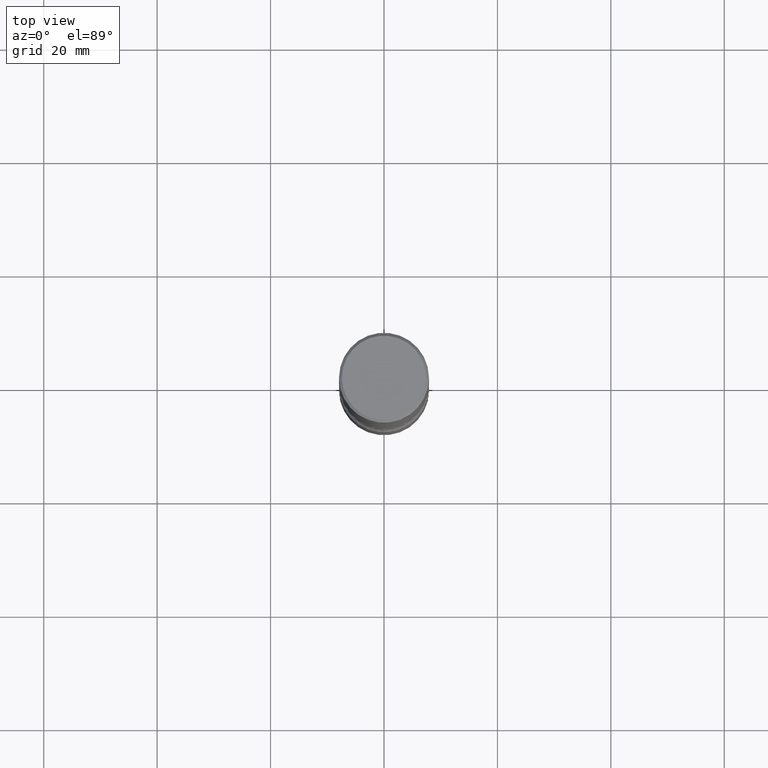
[diagram: clean part render]
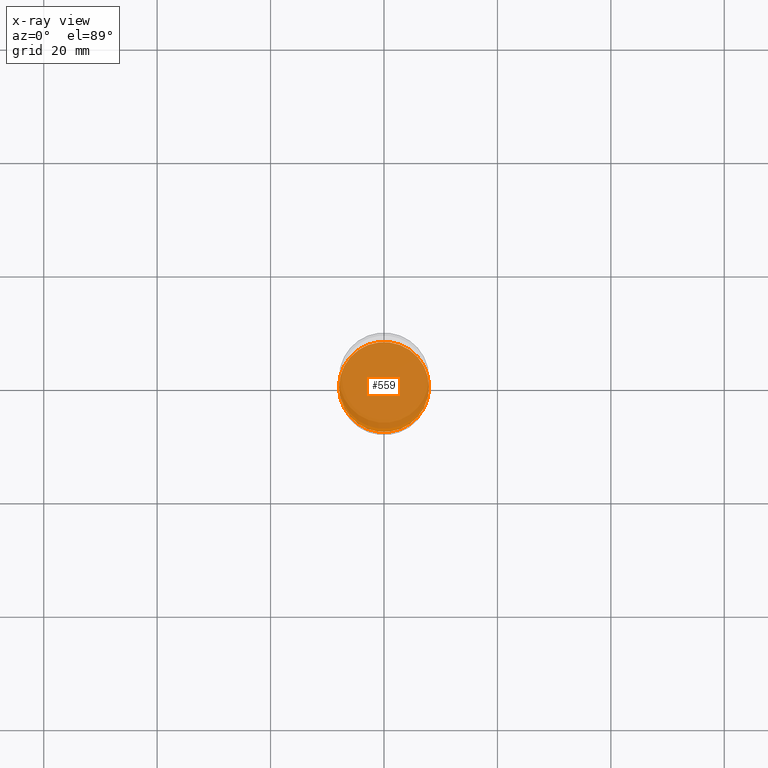
[diagram: x-ray — body ghosted, one internal face saturated and labeled with its STEP entity id]
A machine part, top view, then the same camera in x-ray: the body is ghosted and one INTERNAL B-rep face — a face not visible from any outside direction — is saturated and labeled: STEP entity #559.
In plain terms, the highlighted planar face has unit normal (0, -0, -1).
Its self-contained STEP definition (entity closure, byte-faithful):
#24 = EDGE_CURVE ( 'NONE', #520, #395, #144, .T. ) ;
#44 = CARTESIAN_POINT ( 'NONE',  ( 9.170508023194261117E-29, -1.309305502066179584E-14, -3.749999999999999556 ) ) ;
#119 = AXIS2_PLACEMENT_3D ( 'NONE', #496, #359, #318 ) ;
#128 = DIRECTION ( 'NONE',  ( -2.445468806185136597E-29, 3.491481338843145583E-15, 1.000000000000000000 ) ) ;
#144 = CIRCLE ( 'NONE', #119, 0.3125000000000001665 ) ;
#169 = EDGE_CURVE ( 'NONE', #395, #520, #472, .T. ) ;
#190 = AXIS2_PLACEMENT_3D ( 'NONE', #44, #128, #419 ) ;
#213 = ORIENTED_EDGE ( 'NONE', *, *, #169, .T. ) ;
#238 = FACE_OUTER_BOUND ( 'NONE', #363, .T. ) ;
#239 = CARTESIAN_POINT ( 'NONE',  ( 0.3125000000000001665, -1.527523085743875418E-14, -3.749999999999999556 ) ) ;
#286 = PLANE ( 'NONE',  #378 ) ;
#288 = DIRECTION ( 'NONE',  ( -1.000000000000000000, 6.982962677686265922E-15, -4.876176775795935793E-29 ) ) ;
#294 = ORIENTED_EDGE ( 'NONE', *, *, #24, .T. ) ;
#318 = DIRECTION ( 'NONE',  ( 1.000000000000000000, -6.982962677686265133E-15, 0.000000000000000000 ) ) ;
#359 = DIRECTION ( 'NONE',  ( -2.445468806185136597E-29, 3.491481338843145583E-15, 1.000000000000000000 ) ) ;
#363 = EDGE_LOOP ( 'NONE', ( #294, #213 ) ) ;
#378 = AXIS2_PLACEMENT_3D ( 'NONE', #415, #455, #288 ) ;
#395 = VERTEX_POINT ( 'NONE', #449 ) ;
#415 = CARTESIAN_POINT ( 'NONE',  ( 9.170508023194261117E-29, -1.309305502066179584E-14, -3.749999999999999556 ) ) ;
#419 = DIRECTION ( 'NONE',  ( 1.000000000000000000, -6.982962677686265133E-15, 0.000000000000000000 ) ) ;
#449 = CARTESIAN_POINT ( 'NONE',  ( -0.3125000000000001665, -1.300241258810579915E-14, -3.749999999999999556 ) ) ;
#455 = DIRECTION ( 'NONE',  ( 2.438088387897960049E-29, -3.491481338843145188E-15, -1.000000000000000000 ) ) ;
#472 = CIRCLE ( 'NONE', #190, 0.3125000000000001665 ) ;
#496 = CARTESIAN_POINT ( 'NONE',  ( 9.170508023194261117E-29, -1.309305502066179584E-14, -3.749999999999999556 ) ) ;
#520 = VERTEX_POINT ( 'NONE', #239 ) ;
#559 = ADVANCED_FACE ( 'NONE', ( #238 ), #286, .F. ) ;